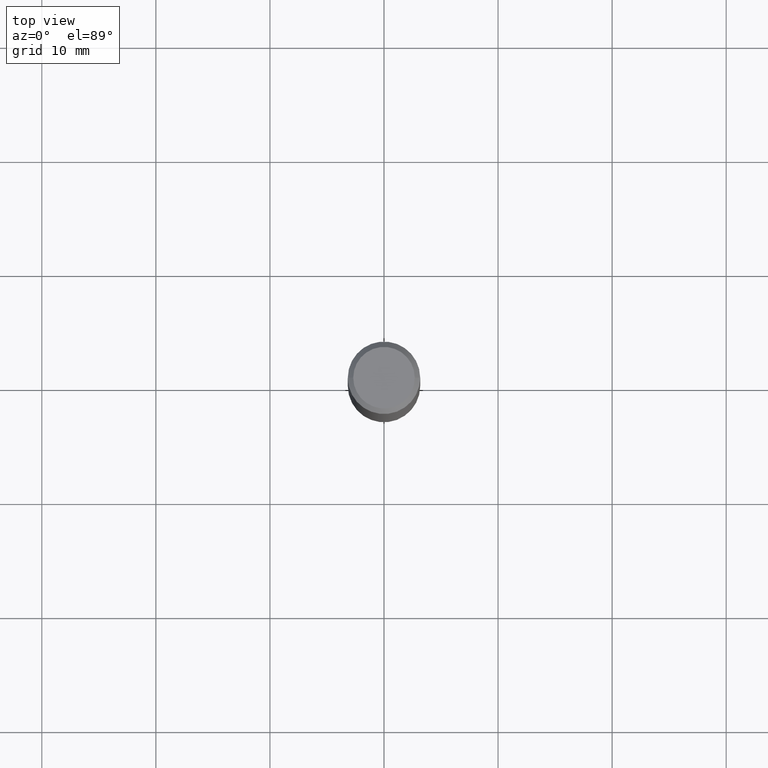
[diagram: clean part render]
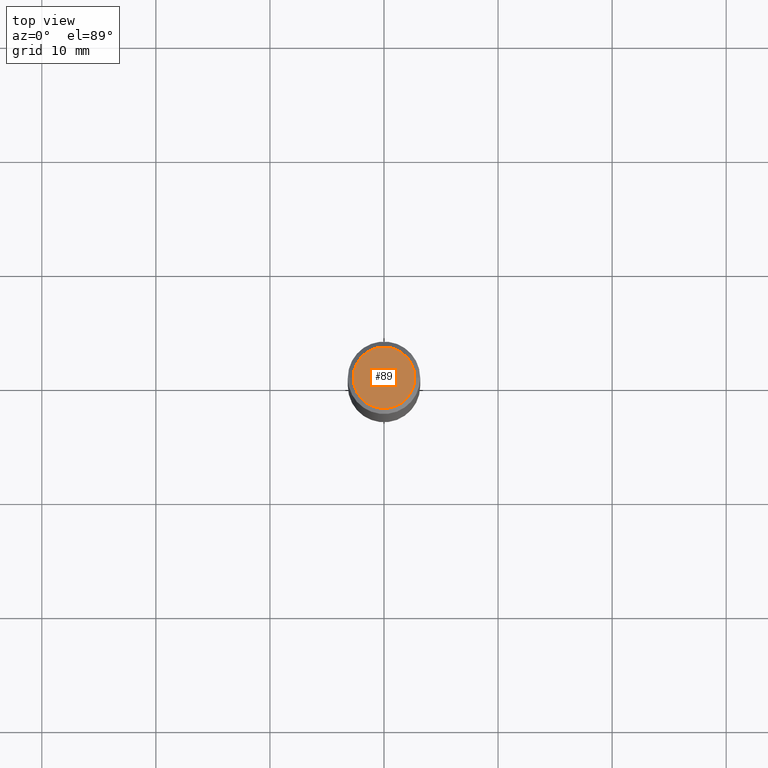
[diagram: same view with one face highlighted and labeled with its STEP entity id]
A machine part, top view. The second image highlights one B-rep face of the part: STEP entity #89.
In plain terms, the highlighted planar face has unit normal (0, -0, -1).
Its self-contained STEP definition (entity closure, byte-faithful):
#5 = EDGE_LOOP ( 'NONE', ( #245, #117 ) ) ;
#19 = AXIS2_PLACEMENT_3D ( 'NONE', #419, #179, #102 ) ;
#21 = PLANE ( 'NONE',  #368 ) ;
#26 = AXIS2_PLACEMENT_3D ( 'NONE', #391, #234, #230 ) ;
#52 = FACE_OUTER_BOUND ( 'NONE', #5, .T. ) ;
#86 = DIRECTION ( 'NONE',  ( -1.000000000000000000, 6.982962677686265922E-15, -4.876176775795935793E-29 ) ) ;
#89 = ADVANCED_FACE ( 'NONE', ( #52 ), #21, .F. ) ;
#99 = CARTESIAN_POINT ( 'NONE',  ( 0.1062499999999999972, -8.259777185439879685E-16, 7.182553477054055401E-19 ) ) ;
#102 = DIRECTION ( 'NONE',  ( 1.000000000000000000, -6.982962677686266711E-15, 4.876153107228683844E-29 ) ) ;
#117 = ORIENTED_EDGE ( 'NONE', *, *, #429, .T. ) ;
#157 = VERTEX_POINT ( 'NONE', #99 ) ;
#179 = DIRECTION ( 'NONE',  ( -2.445468806185136597E-29, 3.491481338843145583E-15, 1.000000000000000000 ) ) ;
#218 = EDGE_CURVE ( 'NONE', #465, #157, #363, .T. ) ;
#220 = CIRCLE ( 'NONE', #26, 0.1062499999999999972 ) ;
#230 = DIRECTION ( 'NONE',  ( 1.000000000000000000, -6.982962677686266711E-15, 4.876153107228683844E-29 ) ) ;
#234 = DIRECTION ( 'NONE',  ( -2.445468806185136597E-29, 3.491481338843145583E-15, 1.000000000000000000 ) ) ;
#245 = ORIENTED_EDGE ( 'NONE', *, *, #218, .T. ) ;
#361 = CARTESIAN_POINT ( 'NONE',  ( -0.1062499999999999972, 7.746724220558198188E-16, 7.182553476946202362E-19 ) ) ;
#363 = CIRCLE ( 'NONE', #19, 0.1062499999999999972 ) ;
#368 = AXIS2_PLACEMENT_3D ( 'NONE', #369, #472, #86 ) ;
#369 = CARTESIAN_POINT ( 'NONE',  ( -8.782355238379108562E-48, 1.253887571509288664E-33, 3.591276738499616421E-19 ) ) ;
#391 = CARTESIAN_POINT ( 'NONE',  ( -1.756471047675821712E-47, 2.507775143018577328E-33, 7.182553476999232843E-19 ) ) ;
#419 = CARTESIAN_POINT ( 'NONE',  ( -1.756471047675821712E-47, 2.507775143018577328E-33, 7.182553476999232843E-19 ) ) ;
#429 = EDGE_CURVE ( 'NONE', #157, #465, #220, .T. ) ;
#465 = VERTEX_POINT ( 'NONE', #361 ) ;
#472 = DIRECTION ( 'NONE',  ( 2.438088387897960049E-29, -3.491481338843145188E-15, -1.000000000000000000 ) ) ;